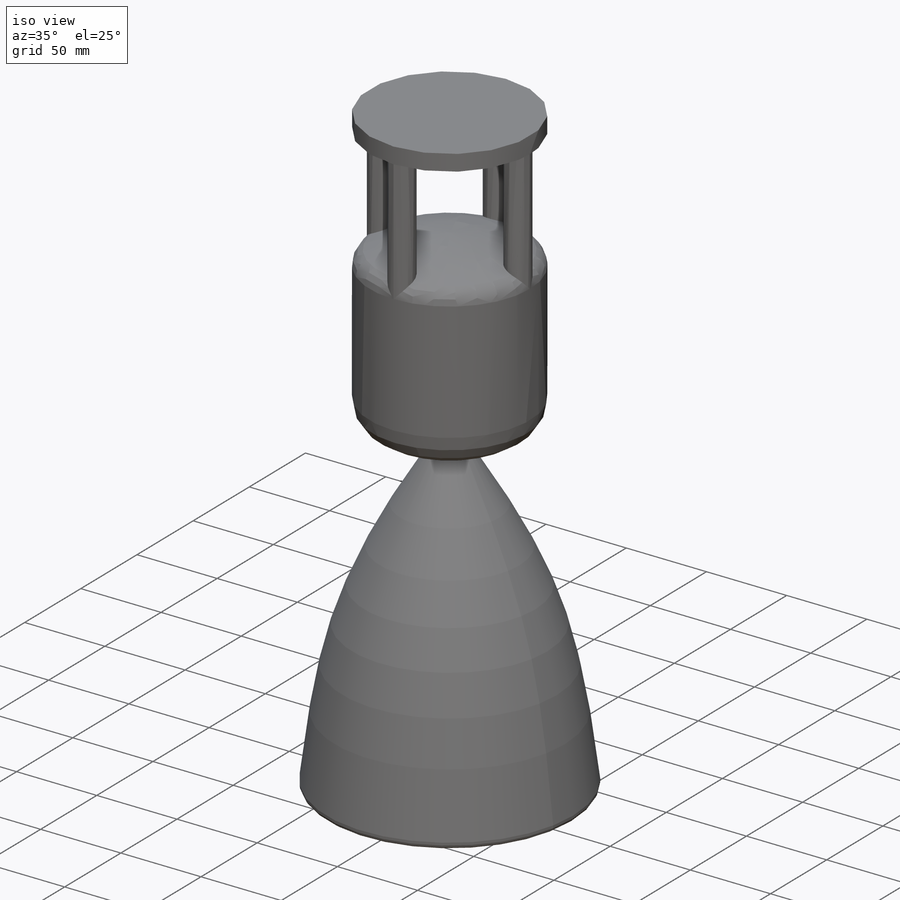
[diagram: iso view]
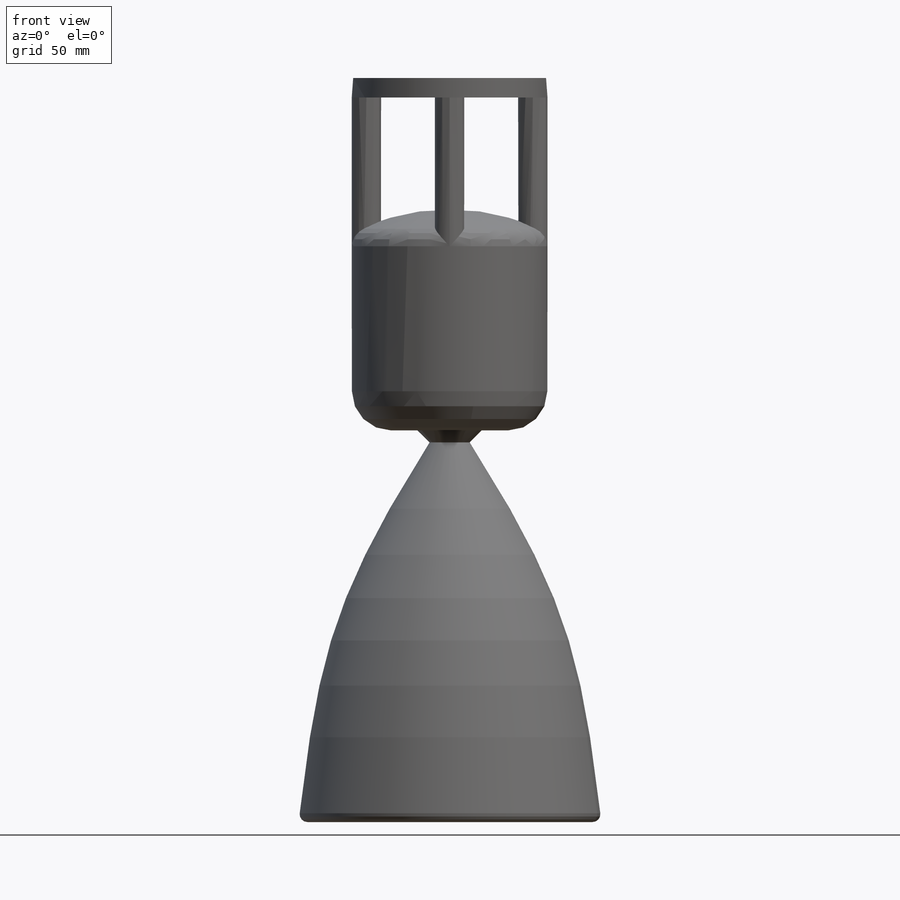
[diagram: front view]
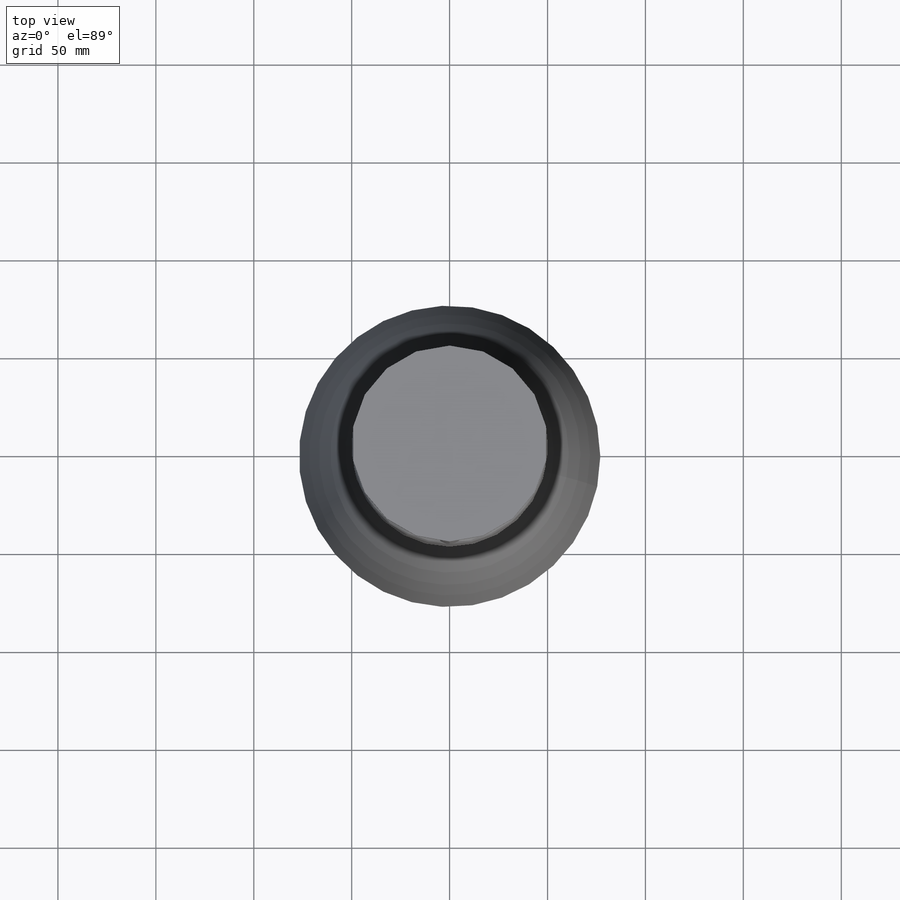
[diagram: top view]
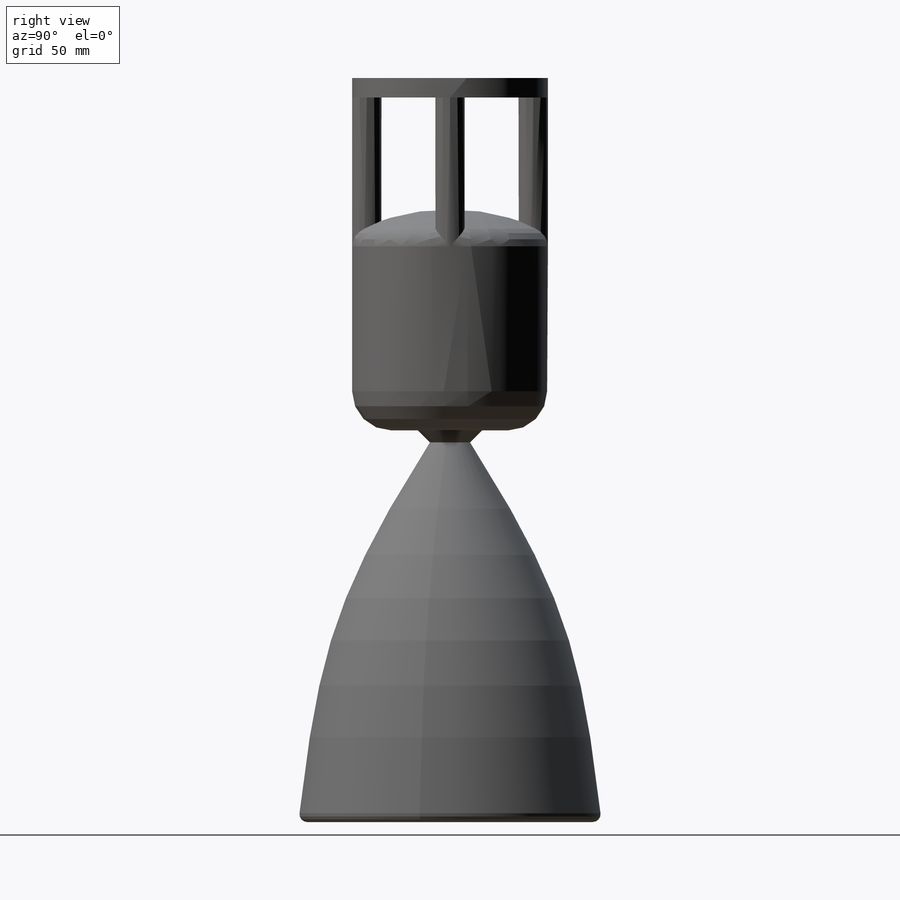
[diagram: right view]
SOLIDWORKS PART (.sldprt)
format: sldprt  version: not decoded by parser v0  size: 322,560 bytes
history: native  units: mm
features: sketch x5, extrude x3, fillet x3, revolve x2, material x1, plane x1, mirror x1, chamfer x1 (+13 scaffold rows collapsed)
feature tree (30):
  scaffold x13  (default folders/planes/origin — collapsed)
  material  "Titanium"
  sketch  "Sketch1"  dims[D1=210.0mm D2=10.0mm D3=77.5mm D4=10.0mm D5=20.0mm]
  revolve  "Revolve1"  Angle=360deg
  plane  "Plane1"  Offset=200mm
  sketch  "Sketch2"  dims[D1=100.0mm]
  extrude  "Extrude1"  Depth=100mm
  sketch  "Sketch3"  dims[D1=15.0mm D2=15.0mm D3=15.0mm D4=15.0mm]
  extrude  "Extrude2"  Depth=70mm
  sketch  "Sketch4"
  extrude  "Extrude3"  Depth=10mm
  sketch  "Sketch7"
  revolve  "Revolve6"  Angle=360deg
  mirror  "Mirror2"
  fillet  "Fillet1"  Radius=20mm
  fillet  "Fillet2"  Radius=10mm
  fillet  "Fillet3"  Radius=4mm
  chamfer  "Chamfer1"  Distance=10mm Angle=45deg
decode coverage: 12 of 15 modeling features carry decoded parameters
note: suppression state not decoded; provenance and decode notes live in map.json
